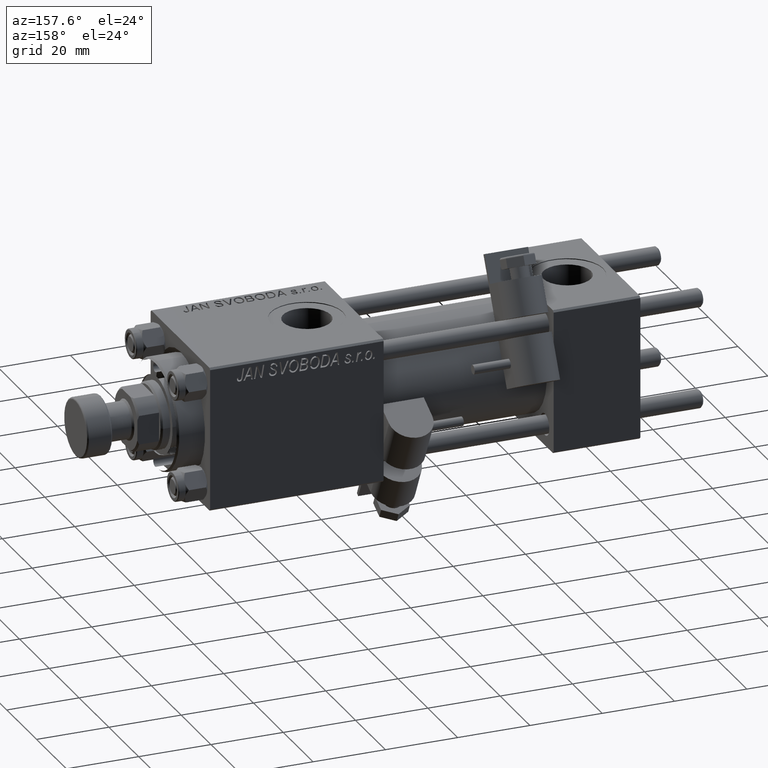
[diagram: clean part render]
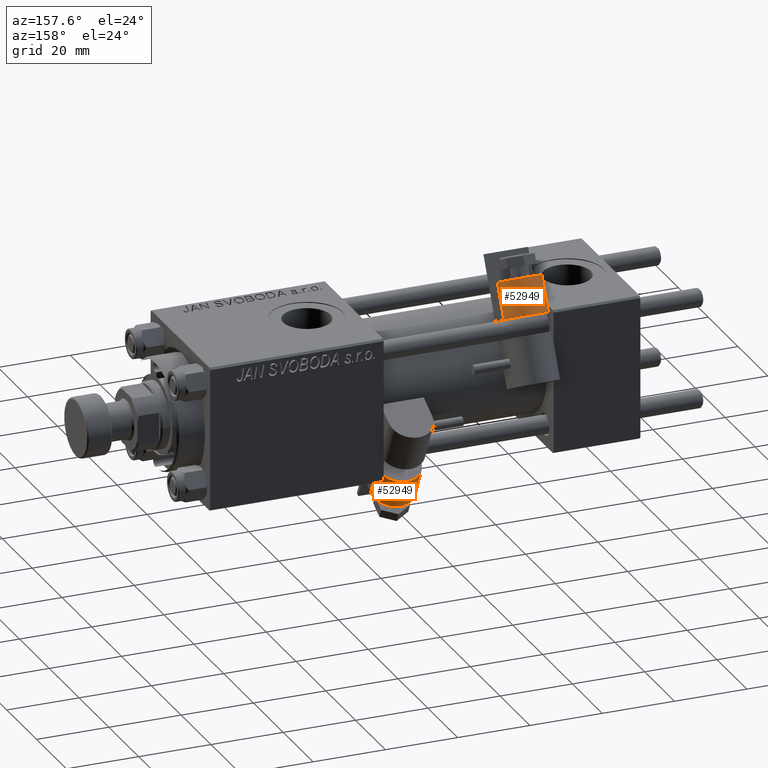
[diagram: same view with one multi-face feature highlighted, each face labeled with its STEP entity id]
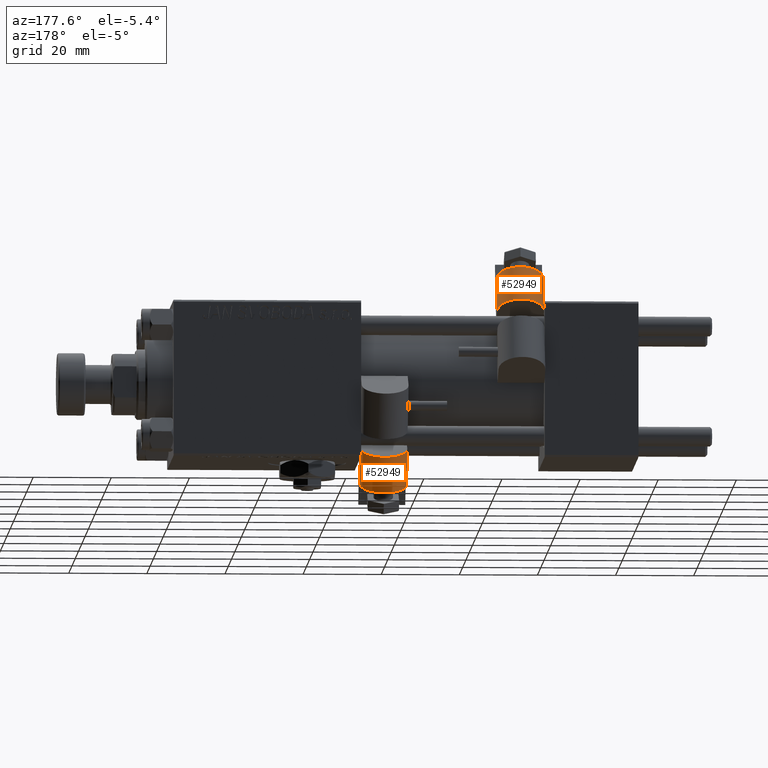
[diagram: same view with one multi-face feature highlighted, each face labeled with its STEP entity id]
A machine part, auxiliary view. The highlighted faces form ONE feature: a constant-radius fillet chain: 2 tangent blend faces with common blend radius 6 mm. The faces share edges in the B-rep.
A second angle (auxiliary view) of the same feature is appended — it is thin or edge-on in the first view.
Their STEP definitions:
[1] entity #52949 (Cylinder):
#3965 = LINE ( 'NONE', #19834, #24942 ) ;
#4035 = DIRECTION ( 'NONE',  ( 0.000000000000000000, 0.000000000000000000, -1.000000000000000000 ) ) ;
#6578 = CARTESIAN_POINT ( 'NONE',  ( 0.000000000000000000, 6.499999999999999112, 1.734723475976807094E-15 ) ) ;
#7252 = FACE_OUTER_BOUND ( 'NONE', #42417, .T. ) ;
#7826 = VERTEX_POINT ( 'NONE', #33772 ) ;
#10784 = EDGE_CURVE ( 'NONE', #12363, #48343, #32174, .T. ) ;
#11026 = DIRECTION ( 'NONE',  ( 0.000000000000000000, 0.000000000000000000, 1.000000000000000000 ) ) ;
#11281 = CARTESIAN_POINT ( 'NONE',  ( 9.740000000000000213, 6.499999999999999112, 1.734723475976807094E-15 ) ) ;
#11918 = DIRECTION ( 'NONE',  ( 0.000000000000000000, 0.000000000000000000, -1.000000000000000000 ) ) ;
#12363 = VERTEX_POINT ( 'NONE', #15099 ) ;
#12588 = LINE ( 'NONE', #36472, #37613 ) ;
#12827 = ORIENTED_EDGE ( 'NONE', *, *, #42672, .F. ) ;
#13581 = AXIS2_PLACEMENT_3D ( 'NONE', #6578, #35305, #11918 ) ;
#15099 = CARTESIAN_POINT ( 'NONE',  ( 9.740000000000000213, 6.500000000000000000, -5.999999999999997335 ) ) ;
#15901 = VERTEX_POINT ( 'NONE', #28460 ) ;
#19320 = DIRECTION ( 'NONE',  ( -1.000000000000000000, -0.000000000000000000, -0.000000000000000000 ) ) ;
#19834 = CARTESIAN_POINT ( 'NONE',  ( 9.740000000000000213, 6.500000000000000000, -5.999999999999997335 ) ) ;
#20685 = CARTESIAN_POINT ( 'NONE',  ( 9.740000000000000213, 6.499999999999999112, 1.734723475976807094E-15 ) ) ;
#22148 = EDGE_CURVE ( 'NONE', #7826, #15901, #33282, .T. ) ;
#23458 = ORIENTED_EDGE ( 'NONE', *, *, #51504, .T. ) ;
#24942 = VECTOR ( 'NONE', #19320, 1000.000000000000000 ) ;
#26913 = ORIENTED_EDGE ( 'NONE', *, *, #10784, .F. ) ;
#27538 = AXIS2_PLACEMENT_3D ( 'NONE', #11281, #36489, #11026 ) ;
#28460 = CARTESIAN_POINT ( 'NONE',  ( 0.000000000000000000, 6.499999999999998224, 6.000000000000000000 ) ) ;
#28979 = DIRECTION ( 'NONE',  ( -1.000000000000000000, -0.000000000000000000, -0.000000000000000000 ) ) ;
#30135 = CARTESIAN_POINT ( 'NONE',  ( 9.740000000000000213, 6.499999999999998224, 6.000000000000000000 ) ) ;
#31443 = CYLINDRICAL_SURFACE ( 'NONE', #27538, 5.999999999999998224 ) ;
#32174 = CIRCLE ( 'NONE', #35587, 5.999999999999998224 ) ;
#33144 = ORIENTED_EDGE ( 'NONE', *, *, #22148, .T. ) ;
#33282 = CIRCLE ( 'NONE', #13581, 5.999999999999998224 ) ;
#33772 = CARTESIAN_POINT ( 'NONE',  ( 0.000000000000000000, 6.500000000000000000, -5.999999999999997335 ) ) ;
#35305 = DIRECTION ( 'NONE',  ( 1.000000000000000000, 0.000000000000000000, 0.000000000000000000 ) ) ;
#35587 = AXIS2_PLACEMENT_3D ( 'NONE', #20685, #40540, #4035 ) ;
#36472 = CARTESIAN_POINT ( 'NONE',  ( 9.740000000000000213, 6.499999999999998224, 6.000000000000000000 ) ) ;
#36489 = DIRECTION ( 'NONE',  ( -1.000000000000000000, -0.000000000000000000, -0.000000000000000000 ) ) ;
#37613 = VECTOR ( 'NONE', #28979, 1000.000000000000000 ) ;
#40540 = DIRECTION ( 'NONE',  ( 1.000000000000000000, 0.000000000000000000, 0.000000000000000000 ) ) ;
#42417 = EDGE_LOOP ( 'NONE', ( #33144, #12827, #26913, #23458 ) ) ;
#42672 = EDGE_CURVE ( 'NONE', #48343, #15901, #12588, .T. ) ;
#48343 = VERTEX_POINT ( 'NONE', #30135 ) ;
#51504 = EDGE_CURVE ( 'NONE', #12363, #7826, #3965, .T. ) ;
#52949 = ADVANCED_FACE ( 'NONE', ( #7252 ), #31443, .T. ) ;
[2] entity #52949 (Cylinder):
#3965 = LINE ( 'NONE', #19834, #24942 ) ;
#4035 = DIRECTION ( 'NONE',  ( 0.000000000000000000, 0.000000000000000000, -1.000000000000000000 ) ) ;
#6578 = CARTESIAN_POINT ( 'NONE',  ( 0.000000000000000000, 6.499999999999999112, 1.734723475976807094E-15 ) ) ;
#7252 = FACE_OUTER_BOUND ( 'NONE', #42417, .T. ) ;
#7826 = VERTEX_POINT ( 'NONE', #33772 ) ;
#10784 = EDGE_CURVE ( 'NONE', #12363, #48343, #32174, .T. ) ;
#11026 = DIRECTION ( 'NONE',  ( 0.000000000000000000, 0.000000000000000000, 1.000000000000000000 ) ) ;
#11281 = CARTESIAN_POINT ( 'NONE',  ( 9.740000000000000213, 6.499999999999999112, 1.734723475976807094E-15 ) ) ;
#11918 = DIRECTION ( 'NONE',  ( 0.000000000000000000, 0.000000000000000000, -1.000000000000000000 ) ) ;
#12363 = VERTEX_POINT ( 'NONE', #15099 ) ;
#12588 = LINE ( 'NONE', #36472, #37613 ) ;
#12827 = ORIENTED_EDGE ( 'NONE', *, *, #42672, .F. ) ;
#13581 = AXIS2_PLACEMENT_3D ( 'NONE', #6578, #35305, #11918 ) ;
#15099 = CARTESIAN_POINT ( 'NONE',  ( 9.740000000000000213, 6.500000000000000000, -5.999999999999997335 ) ) ;
#15901 = VERTEX_POINT ( 'NONE', #28460 ) ;
#19320 = DIRECTION ( 'NONE',  ( -1.000000000000000000, -0.000000000000000000, -0.000000000000000000 ) ) ;
#19834 = CARTESIAN_POINT ( 'NONE',  ( 9.740000000000000213, 6.500000000000000000, -5.999999999999997335 ) ) ;
#20685 = CARTESIAN_POINT ( 'NONE',  ( 9.740000000000000213, 6.499999999999999112, 1.734723475976807094E-15 ) ) ;
#22148 = EDGE_CURVE ( 'NONE', #7826, #15901, #33282, .T. ) ;
#23458 = ORIENTED_EDGE ( 'NONE', *, *, #51504, .T. ) ;
#24942 = VECTOR ( 'NONE', #19320, 1000.000000000000000 ) ;
#26913 = ORIENTED_EDGE ( 'NONE', *, *, #10784, .F. ) ;
#27538 = AXIS2_PLACEMENT_3D ( 'NONE', #11281, #36489, #11026 ) ;
#28460 = CARTESIAN_POINT ( 'NONE',  ( 0.000000000000000000, 6.499999999999998224, 6.000000000000000000 ) ) ;
#28979 = DIRECTION ( 'NONE',  ( -1.000000000000000000, -0.000000000000000000, -0.000000000000000000 ) ) ;
#30135 = CARTESIAN_POINT ( 'NONE',  ( 9.740000000000000213, 6.499999999999998224, 6.000000000000000000 ) ) ;
#31443 = CYLINDRICAL_SURFACE ( 'NONE', #27538, 5.999999999999998224 ) ;
#32174 = CIRCLE ( 'NONE', #35587, 5.999999999999998224 ) ;
#33144 = ORIENTED_EDGE ( 'NONE', *, *, #22148, .T. ) ;
#33282 = CIRCLE ( 'NONE', #13581, 5.999999999999998224 ) ;
#33772 = CARTESIAN_POINT ( 'NONE',  ( 0.000000000000000000, 6.500000000000000000, -5.999999999999997335 ) ) ;
#35305 = DIRECTION ( 'NONE',  ( 1.000000000000000000, 0.000000000000000000, 0.000000000000000000 ) ) ;
#35587 = AXIS2_PLACEMENT_3D ( 'NONE', #20685, #40540, #4035 ) ;
#36472 = CARTESIAN_POINT ( 'NONE',  ( 9.740000000000000213, 6.499999999999998224, 6.000000000000000000 ) ) ;
#36489 = DIRECTION ( 'NONE',  ( -1.000000000000000000, -0.000000000000000000, -0.000000000000000000 ) ) ;
#37613 = VECTOR ( 'NONE', #28979, 1000.000000000000000 ) ;
#40540 = DIRECTION ( 'NONE',  ( 1.000000000000000000, 0.000000000000000000, 0.000000000000000000 ) ) ;
#42417 = EDGE_LOOP ( 'NONE', ( #33144, #12827, #26913, #23458 ) ) ;
#42672 = EDGE_CURVE ( 'NONE', #48343, #15901, #12588, .T. ) ;
#48343 = VERTEX_POINT ( 'NONE', #30135 ) ;
#51504 = EDGE_CURVE ( 'NONE', #12363, #7826, #3965, .T. ) ;
#52949 = ADVANCED_FACE ( 'NONE', ( #7252 ), #31443, .T. ) ;